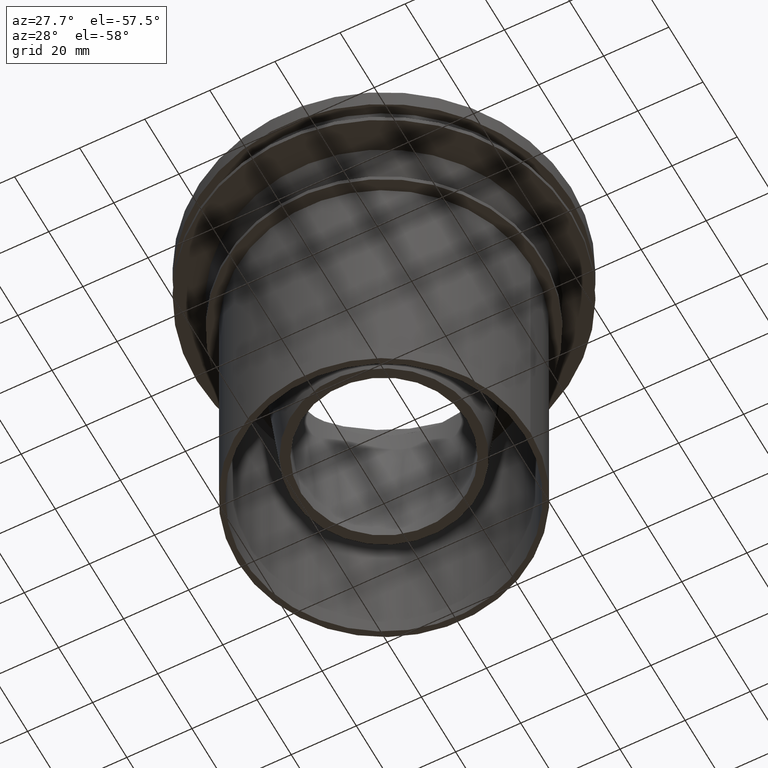
[diagram: clean part render]
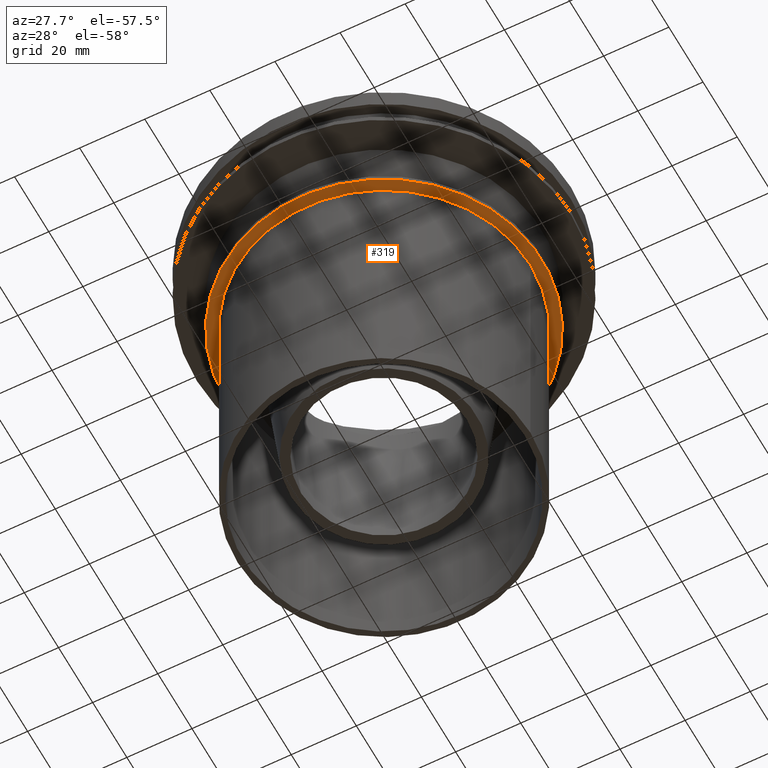
[diagram: same view with one face highlighted and labeled with its STEP entity id]
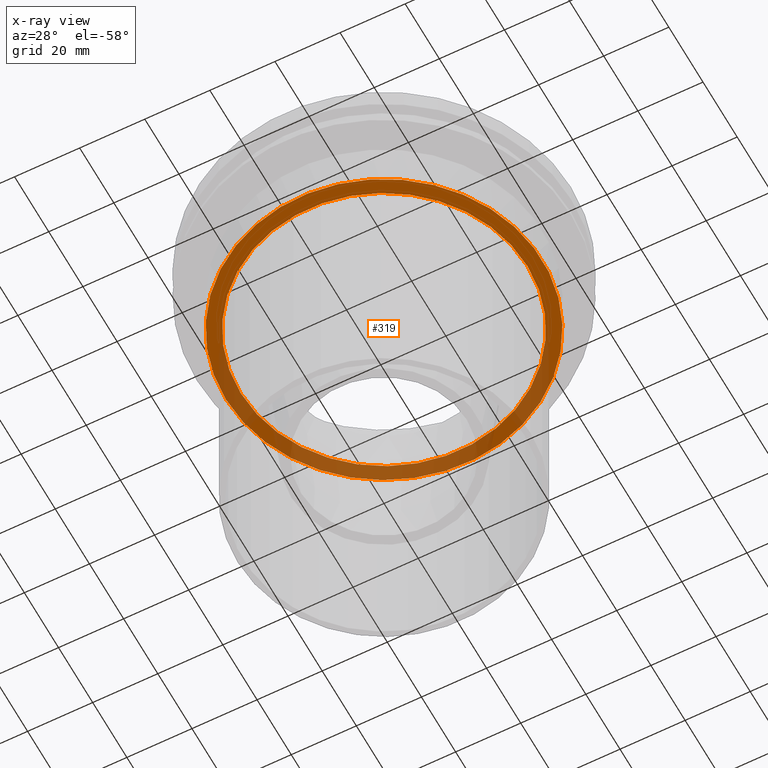
[diagram: x-ray of the same camera — body ghosted, the highlighted face saturated]
A machine part, auxiliary view. The second image highlights one B-rep face of the part: STEP entity #319.
The next image is the same camera in x-ray: the body ghosted, the highlighted face saturated — about 37% of this face is hidden behind the body in this view.
In plain terms, the highlighted planar face has unit normal (0, 0, -1).
Its self-contained STEP definition (entity closure, byte-faithful):
#85=ORIENTED_EDGE('',*,*,#121,.T.);
#86=ORIENTED_EDGE('',*,*,#120,.F.);
#120=EDGE_CURVE('',#147,#147,#174,.T.);
#121=EDGE_CURVE('',#148,#148,#175,.T.);
#147=VERTEX_POINT('',#583);
#148=VERTEX_POINT('',#586);
#174=CIRCLE('',#392,44.056);
#175=CIRCLE('',#394,48.556);
#220=EDGE_LOOP('',(#85));
#221=EDGE_LOOP('',(#86));
#274=FACE_BOUND('',#220,.T.);
#275=FACE_BOUND('',#221,.T.);
#299=PLANE('',#393);
#319=ADVANCED_FACE('',(#274,#275),#299,.T.);
#392=AXIS2_PLACEMENT_3D('',#582,#489,#490);
#393=AXIS2_PLACEMENT_3D('',#584,#491,#492);
#394=AXIS2_PLACEMENT_3D('',#585,#493,#494);
#489=DIRECTION('',(0.,0.,-1.));
#490=DIRECTION('',(-1.,0.,0.));
#491=DIRECTION('',(0.,0.,-1.));
#492=DIRECTION('',(-1.,0.,0.));
#493=DIRECTION('',(0.,0.,-1.));
#494=DIRECTION('',(-1.,0.,0.));
#582=CARTESIAN_POINT('',(0.,0.,-30.));
#583=CARTESIAN_POINT('',(-44.056,0.,-30.));
#584=CARTESIAN_POINT('',(-44.056,0.,-30.));
#585=CARTESIAN_POINT('',(0.,0.,-30.));
#586=CARTESIAN_POINT('',(-48.556,0.,-30.));